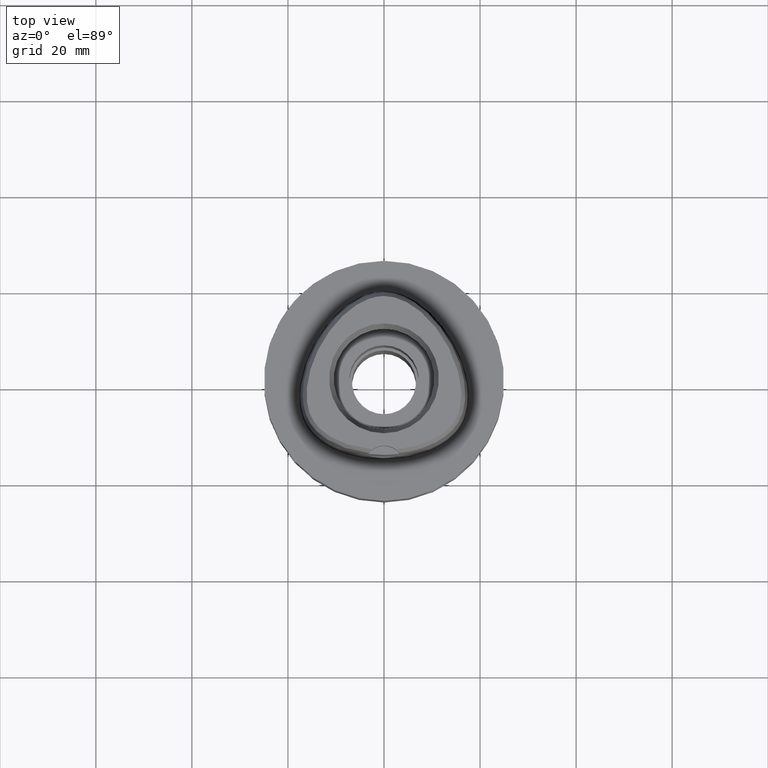
[diagram: clean part render]
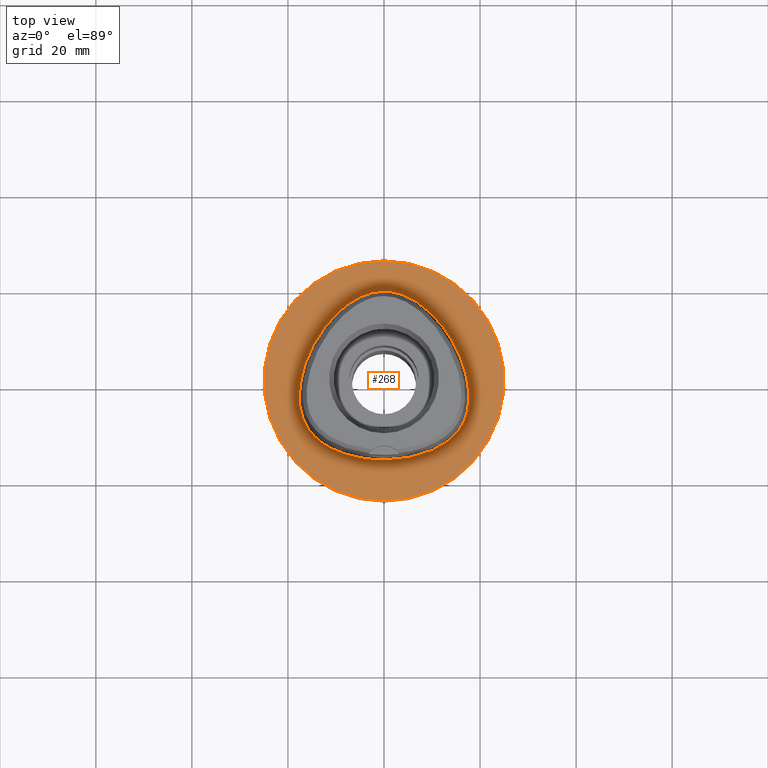
[diagram: same view with one face highlighted and labeled with its STEP entity id]
A machine part, top view. The second image highlights one B-rep face of the part: STEP entity #268.
In plain terms, the highlighted planar face has unit normal (0, 0, -1).
Its self-contained STEP definition (entity closure, byte-faithful):
#4 = AXIS2_PLACEMENT_3D ( 'NONE', #984, #1016, #2500 ) ;
#74 = EDGE_CURVE ( 'NONE', #2124, #1038, #1490, .T. ) ;
#100 = CARTESIAN_POINT ( 'NONE',  ( 17.56373947497163002, -5.455996100282692218, -1.836226693456175993E-06 ) ) ;
#122 = CARTESIAN_POINT ( 'NONE',  ( 15.64884227974987141, -10.21298830828676074, -1.836226693456175993E-06 ) ) ;
#131 = B_SPLINE_CURVE_WITH_KNOTS ( 'NONE', 3,
 ( #2190, #1853, #2539, #3670, #2915, #4055, #1090, #2116, #715, #3725, #3623, #2213, #1753, #333, #1828, #3338, #3253, #4738, #1018, #4026, #643, #2147 ),
 .UNSPECIFIED., .F., .F.,
 ( 4, 1, 1, 1, 1, 1, 1, 1, 1, 1, 1, 1, 1, 1, 1, 1, 1, 1, 1, 4 ),
 ( 0.0000000000000000000, 0.04166666666819000137, 0.08333333333479001070, 0.1666666666680000075, 0.2500000000011999846, 0.3333333333344000171, 0.4166666666677000253, 0.5000000000008000267, 0.5416666666675000741, 0.5833333333340000593, 0.6250000000005999645, 0.6458333333339000282, 0.6666666666673000119, 0.6875000000005999645, 0.7083333333337999971, 0.7500000000005000445, 0.7916666666671000607, 0.8333333333336000459, 0.9166666666668999985, 1.000000000000000000 ),
 .UNSPECIFIED. ) ;
#268 = ADVANCED_FACE ( 'NONE', ( #4761, #1042 ), #3743, .F. ) ;
#333 = CARTESIAN_POINT ( 'NONE',  ( -16.20602471960554780, -9.356552734355970458, 1.490520841517309347E-09 ) ) ;
#473 = CARTESIAN_POINT ( 'NONE',  ( 2.040572367118152375, 18.55015629520277542, -1.836226693456175993E-06 ) ) ;
#530 = B_SPLINE_CURVE_WITH_KNOTS ( 'NONE', 3,
 ( #4150, #3781, #1789, #3294, #4775, #1630, #1199, #122, #2395, #4594, #4575, #100, #2744, #1593, #3091, #1910, #2693, #4267, #4531, #473, #1222, #839 ),
 .UNSPECIFIED., .F., .F.,
 ( 4, 1, 1, 1, 1, 1, 1, 1, 1, 1, 1, 1, 1, 1, 1, 1, 1, 1, 1, 4 ),
 ( 0.0000000000000000000, 0.08333333333352001271, 0.1666666666668000230, 0.2083333333333000081, 0.2500000000000000000, 0.2916666666666000163, 0.3124999999998999689, 0.3333333333331000015, 0.3541666666665000407, 0.3749999999997999933, 0.4166666666664000096, 0.4583333333330000259, 0.4999999999995999866, 0.5833333333328000192, 0.6666666666660999718, 0.7499999999993000044, 0.8333333333325000369, 0.9166666666657000695, 0.9583333333322999747, 1.000000000000000000 ),
 .UNSPECIFIED. ) ;
#643 = CARTESIAN_POINT ( 'NONE',  ( -1.683697722526571683, -16.45499999996186702, 1.490520841517309347E-09 ) ) ;
#701 = VERTEX_POINT ( 'NONE', #2803 ) ;
#715 = CARTESIAN_POINT ( 'NONE',  ( -17.49754712303695570, -0.2285937500065497174, 1.490520841517309347E-09 ) ) ;
#730 = CARTESIAN_POINT ( 'NONE',  ( 7.757666783381999102E-11, 18.69499999997999851, 1.701231748066999737E-13 ) ) ;
#837 = EDGE_LOOP ( 'NONE', ( #1538, #1836 ) ) ;
#839 = CARTESIAN_POINT ( 'NONE',  ( 7.757666783381999102E-11, 18.69499999997999851, 1.701231748066999737E-13 ) ) ;
#856 = DIRECTION ( 'NONE',  ( 0.0000000000000000000, 0.0000000000000000000, -1.000000000000000000 ) ) ;
#984 = CARTESIAN_POINT ( 'NONE',  ( 0.0000000000000000000, 1.282205198706999922E-14, 0.0000000000000000000 ) ) ;
#1016 = DIRECTION ( 'NONE',  ( 0.0000000000000000000, 0.0000000000000000000, -1.000000000000000000 ) ) ;
#1018 = CARTESIAN_POINT ( 'NONE',  ( -8.946741556172121079, -15.03902343746575276, 1.490520841517309347E-09 ) ) ;
#1038 = VERTEX_POINT ( 'NONE', #1511 ) ;
#1042 = FACE_BOUND ( 'NONE', #837, .T. ) ;
#1090 = CARTESIAN_POINT ( 'NONE',  ( -14.38008119686892528, 8.302343749981027088, 1.490520841517309347E-09 ) ) ;
#1099 = EDGE_LOOP ( 'NONE', ( #2058, #4249 ) ) ;
#1149 = VERTEX_POINT ( 'NONE', #730 ) ;
#1199 = CARTESIAN_POINT ( 'NONE',  ( 14.78833383742497354, -11.28232913325840236, -1.836226693456175993E-06 ) ) ;
#1216 = CARTESIAN_POINT ( 'NONE',  ( 0.0000000000000000000, 25.00000000000000000, 0.0000000000000000000 ) ) ;
#1222 = CARTESIAN_POINT ( 'NONE',  ( 0.6801907891380997162, 18.69500004589636433, -1.836226693456175993E-06 ) ) ;
#1367 = EDGE_CURVE ( 'NONE', #701, #1149, #530, .T. ) ;
#1490 = CIRCLE ( 'NONE', #4, 25.00000000000000000 ) ;
#1511 = CARTESIAN_POINT ( 'NONE',  ( 0.0000000000000000000, -25.00000000000000000, 0.0000000000000000000 ) ) ;
#1538 = ORIENTED_EDGE ( 'NONE', *, *, #2020, .F. ) ;
#1593 = CARTESIAN_POINT ( 'NONE',  ( 17.49754716852097758, -0.2285937419402335469, -1.836226693456175993E-06 ) ) ;
#1622 = DIRECTION ( 'NONE',  ( 0.0000000000000000000, -1.000000000000000000, 0.0000000000000000000 ) ) ;
#1630 = CARTESIAN_POINT ( 'NONE',  ( 13.50690096327731560, -12.48264652063485514, -1.836226693456175993E-06 ) ) ;
#1753 = CARTESIAN_POINT ( 'NONE',  ( -16.66912842135493733, -8.445800781235579535, 1.490520841517309347E-09 ) ) ;
#1789 = CARTESIAN_POINT ( 'NONE',  ( 5.051093175709695515, -16.15562504543781230, -1.836226693456175993E-06 ) ) ;
#1794 = EDGE_CURVE ( 'NONE', #1038, #2124, #2590, .T. ) ;
#1828 = CARTESIAN_POINT ( 'NONE',  ( -15.64884224252826428, -10.21298828122671587, 1.490520841517309347E-09 ) ) ;
#1836 = ORIENTED_EDGE ( 'NONE', *, *, #1367, .F. ) ;
#1853 = CARTESIAN_POINT ( 'NONE',  ( -0.6801907858606122126, 18.69499999996968853, 1.490520841517309140E-09 ) ) ;
#1868 = DIRECTION ( 'NONE',  ( 0.0000000000000000000, -1.000000000000000000, 0.0000000000000000000 ) ) ;
#1910 = CARTESIAN_POINT ( 'NONE',  ( 14.38008123685502682, 8.302343773064935206, -1.836226693456175993E-06 ) ) ;
#2020 = EDGE_CURVE ( 'NONE', #1149, #701, #131, .T. ) ;
#2058 = ORIENTED_EDGE ( 'NONE', *, *, #74, .F. ) ;
#2116 = CARTESIAN_POINT ( 'NONE',  ( -16.51672824776339610, 3.703437499987029202, 1.490520841517309347E-09 ) ) ;
#2124 = VERTEX_POINT ( 'NONE', #1216 ) ;
#2147 = CARTESIAN_POINT ( 'NONE',  ( -1.877677780215000057E-11, -16.45500000000000185, 1.713444201337999900E-13 ) ) ;
#2190 = CARTESIAN_POINT ( 'NONE',  ( 7.757666783381999102E-11, 18.69499999997999851, 1.701231748066999737E-13 ) ) ;
#2213 = CARTESIAN_POINT ( 'NONE',  ( -17.16495051777107861, -7.165908203114129904, 1.490520841517309347E-09 ) ) ;
#2395 = CARTESIAN_POINT ( 'NONE',  ( 16.20602475946684251, -9.356552757369833273, -1.836226693456175993E-06 ) ) ;
#2500 = DIRECTION ( 'NONE',  ( 0.0000000000000000000, 1.000000000000000000, 0.0000000000000000000 ) ) ;
#2539 = CARTESIAN_POINT ( 'NONE',  ( -2.040572357659212077, 18.55015624996119783, 1.490520841517309347E-09 ) ) ;
#2590 = CIRCLE ( 'NONE', #4321, 25.00000000000000000 ) ;
#2693 = CARTESIAN_POINT ( 'NONE',  ( 11.46563511551387826, 12.45218752977964272, -1.836226693456175993E-06 ) ) ;
#2744 = CARTESIAN_POINT ( 'NONE',  ( 17.71143740166056446, -3.269218749701060300, -1.836226693456175993E-06 ) ) ;
#2748 = AXIS2_PLACEMENT_3D ( 'NONE', #4398, #2942, #1868 ) ;
#2803 = CARTESIAN_POINT ( 'NONE',  ( -1.877677780215000057E-11, -16.45500000000000185, 1.713444201337999900E-13 ) ) ;
#2915 = CARTESIAN_POINT ( 'NONE',  ( -7.967839664201826544, 15.83070312496485954, 1.490520841517309347E-09 ) ) ;
#2942 = DIRECTION ( 'NONE',  ( 0.0000000000000000000, 0.0000000000000000000, -1.000000000000000000 ) ) ;
#3091 = CARTESIAN_POINT ( 'NONE',  ( 16.51672829123222996, 3.703437515670833236, -1.836226693456175993E-06 ) ) ;
#3253 = CARTESIAN_POINT ( 'NONE',  ( -13.50690093478438669, -12.48264648434941826, 1.490520841517309347E-09 ) ) ;
#3294 = CARTESIAN_POINT ( 'NONE',  ( 8.946741571929312187, -15.03902348089170893, -1.836226693456175993E-06 ) ) ;
#3338 = CARTESIAN_POINT ( 'NONE',  ( -14.78833380397595221, -11.28232910153485413, 1.490520841517309347E-09 ) ) ;
#3623 = CARTESIAN_POINT ( 'NONE',  ( -17.56373942928948750, -5.455996093744947650, 1.490520841517309347E-09 ) ) ;
#3670 = CARTESIAN_POINT ( 'NONE',  ( -4.728927206800063843, 17.73480468746900485, 1.490520841517309347E-09 ) ) ;
#3725 = CARTESIAN_POINT ( 'NONE',  ( -17.71143735557415866, -3.269218750000415952, 1.490520841517309347E-09 ) ) ;
#3743 = PLANE ( 'NONE',  #2748 ) ;
#3781 = CARTESIAN_POINT ( 'NONE',  ( 1.683697725238914922, -16.45500004590481069, -1.836226693456175993E-06 ) ) ;
#4026 = CARTESIAN_POINT ( 'NONE',  ( -5.051093167566182096, -16.15562499996080348, 1.490520841517309347E-09 ) ) ;
#4055 = CARTESIAN_POINT ( 'NONE',  ( -11.46563508020406452, 12.45218749998103824, 1.490520841517309347E-09 ) ) ;
#4150 = CARTESIAN_POINT ( 'NONE',  ( -1.877677780215000057E-11, -16.45500000000000185, 1.713444201337999900E-13 ) ) ;
#4249 = ORIENTED_EDGE ( 'NONE', *, *, #1794, .F. ) ;
#4267 = CARTESIAN_POINT ( 'NONE',  ( 7.967839692817639374, 15.83070316141266254, -1.836226693456175993E-06 ) ) ;
#4321 = AXIS2_PLACEMENT_3D ( 'NONE', #4586, #856, #1622 ) ;
#4398 = CARTESIAN_POINT ( 'NONE',  ( 0.0000000000000000000, 1.224646799146999965E-14, 0.0000000000000000000 ) ) ;
#4531 = CARTESIAN_POINT ( 'NONE',  ( 4.728927226545753371, 17.73480472946656405, -1.836226693456175993E-06 ) ) ;
#4575 = CARTESIAN_POINT ( 'NONE',  ( 17.16495056197040370, -7.165908216233295214, -1.836226693456175993E-06 ) ) ;
#4586 = CARTESIAN_POINT ( 'NONE',  ( 0.0000000000000000000, 1.282205198706999922E-14, 0.0000000000000000000 ) ) ;
#4594 = CARTESIAN_POINT ( 'NONE',  ( 16.66912846340898113, -8.445800799939133796, -1.836226693456175993E-06 ) ) ;
#4738 = CARTESIAN_POINT ( 'NONE',  ( -11.68694516581786758, -13.70394531246693326, 1.490520841517309347E-09 ) ) ;
#4761 = FACE_OUTER_BOUND ( 'NONE', #1099, .T. ) ;
#4775 = CARTESIAN_POINT ( 'NONE',  ( 11.68694518860442777, -13.70394535252442125, -1.836226693456175993E-06 ) ) ;